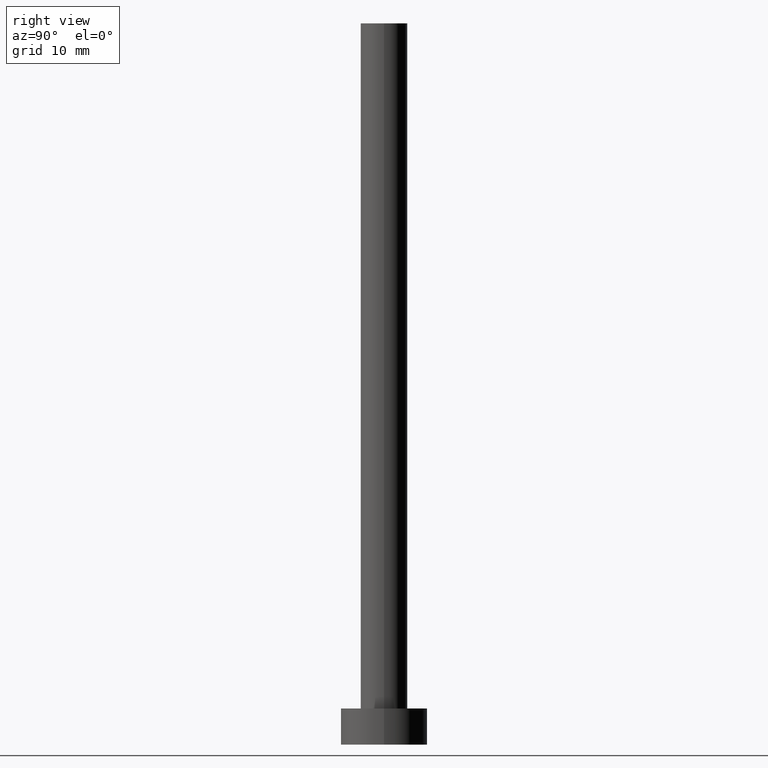
[diagram: clean part render]
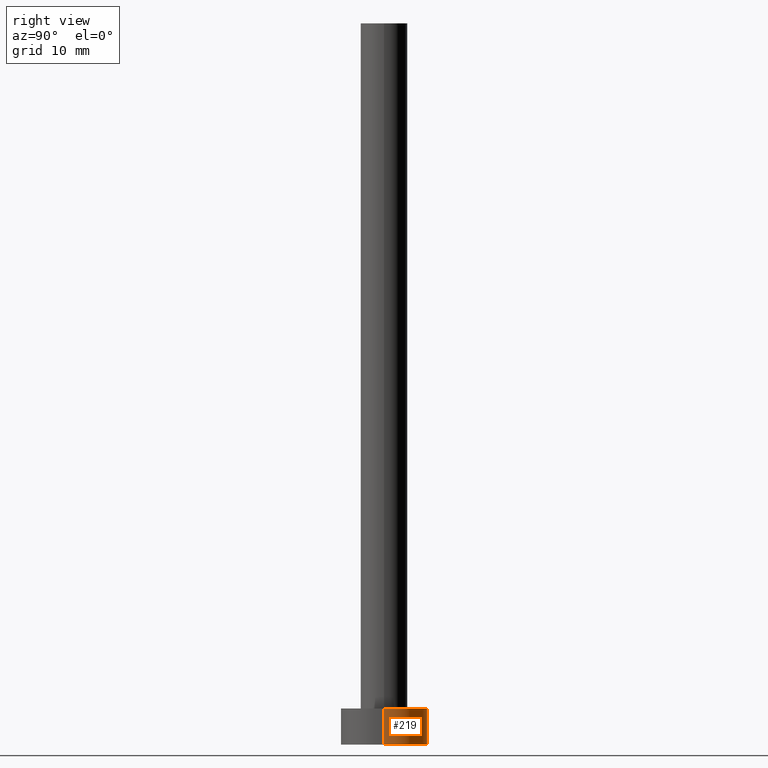
[diagram: same view with one face highlighted and labeled with its STEP entity id]
A machine part, right view. The second image highlights one B-rep face of the part: STEP entity #219.
In plain terms, the highlighted cylindrical surface (partial cylindrical patch) has radius 6 mm, axis along (-0, -0, -1).
Its self-contained STEP definition (entity closure, byte-faithful):
#2 = DIRECTION ( 'NONE',  ( -0.000000000000000000, -0.000000000000000000, -1.000000000000000000 ) ) ;
#8 = ORIENTED_EDGE ( 'NONE', *, *, #51, .T. ) ;
#10 = ORIENTED_EDGE ( 'NONE', *, *, #30, .F. ) ;
#19 = CARTESIAN_POINT ( 'NONE',  ( 6.000000000000000888, 7.347880794884120722E-16, 5.000000000000000000 ) ) ;
#30 = EDGE_CURVE ( 'NONE', #154, #211, #50, .T. ) ;
#37 = DIRECTION ( 'NONE',  ( 0.000000000000000000, 0.000000000000000000, 1.000000000000000000 ) ) ;
#38 = DIRECTION ( 'NONE',  ( -0.000000000000000000, -0.000000000000000000, -1.000000000000000000 ) ) ;
#39 = CARTESIAN_POINT ( 'NONE',  ( -6.000000000000000888, 0.000000000000000000, 5.000000000000000000 ) ) ;
#43 = AXIS2_PLACEMENT_3D ( 'NONE', #239, #2, #206 ) ;
#50 = CIRCLE ( 'NONE', #196, 6.000000000000000888 ) ;
#51 = EDGE_CURVE ( 'NONE', #248, #127, #100, .T. ) ;
#55 = DIRECTION ( 'NONE',  ( 1.000000000000000000, 0.000000000000000000, 0.000000000000000000 ) ) ;
#56 = VECTOR ( 'NONE', #130, 1000.000000000000000 ) ;
#68 = CARTESIAN_POINT ( 'NONE',  ( 6.000000000000000888, 7.347880794884120722E-16, 5.000000000000000000 ) ) ;
#80 = CARTESIAN_POINT ( 'NONE',  ( 0.000000000000000000, 0.000000000000000000, 0.000000000000000000 ) ) ;
#85 = DIRECTION ( 'NONE',  ( 0.000000000000000000, 0.000000000000000000, 1.000000000000000000 ) ) ;
#88 = LINE ( 'NONE', #108, #189 ) ;
#100 = CIRCLE ( 'NONE', #138, 6.000000000000000888 ) ;
#108 = CARTESIAN_POINT ( 'NONE',  ( -6.000000000000000888, 0.000000000000000000, 5.000000000000000000 ) ) ;
#109 = EDGE_LOOP ( 'NONE', ( #10, #224, #8, #182 ) ) ;
#121 = CARTESIAN_POINT ( 'NONE',  ( 0.000000000000000000, 0.000000000000000000, 5.000000000000000000 ) ) ;
#123 = CYLINDRICAL_SURFACE ( 'NONE', #43, 6.000000000000000888 ) ;
#127 = VERTEX_POINT ( 'NONE', #148 ) ;
#130 = DIRECTION ( 'NONE',  ( -0.000000000000000000, -0.000000000000000000, -1.000000000000000000 ) ) ;
#136 = EDGE_CURVE ( 'NONE', #211, #127, #88, .T. ) ;
#138 = AXIS2_PLACEMENT_3D ( 'NONE', #80, #37, #164 ) ;
#148 = CARTESIAN_POINT ( 'NONE',  ( -6.000000000000000888, 0.000000000000000000, 0.000000000000000000 ) ) ;
#153 = CARTESIAN_POINT ( 'NONE',  ( 6.000000000000000888, 7.347880794884120722E-16, 0.000000000000000000 ) ) ;
#154 = VERTEX_POINT ( 'NONE', #19 ) ;
#164 = DIRECTION ( 'NONE',  ( 1.000000000000000000, 0.000000000000000000, 0.000000000000000000 ) ) ;
#182 = ORIENTED_EDGE ( 'NONE', *, *, #136, .F. ) ;
#185 = LINE ( 'NONE', #68, #56 ) ;
#189 = VECTOR ( 'NONE', #38, 1000.000000000000000 ) ;
#196 = AXIS2_PLACEMENT_3D ( 'NONE', #121, #85, #55 ) ;
#206 = DIRECTION ( 'NONE',  ( -1.000000000000000000, 0.000000000000000000, 0.000000000000000000 ) ) ;
#211 = VERTEX_POINT ( 'NONE', #39 ) ;
#218 = FACE_OUTER_BOUND ( 'NONE', #109, .T. ) ;
#219 = ADVANCED_FACE ( 'NONE', ( #218 ), #123, .T. ) ;
#220 = EDGE_CURVE ( 'NONE', #154, #248, #185, .T. ) ;
#224 = ORIENTED_EDGE ( 'NONE', *, *, #220, .T. ) ;
#239 = CARTESIAN_POINT ( 'NONE',  ( 0.000000000000000000, 0.000000000000000000, 5.000000000000000000 ) ) ;
#248 = VERTEX_POINT ( 'NONE', #153 ) ;